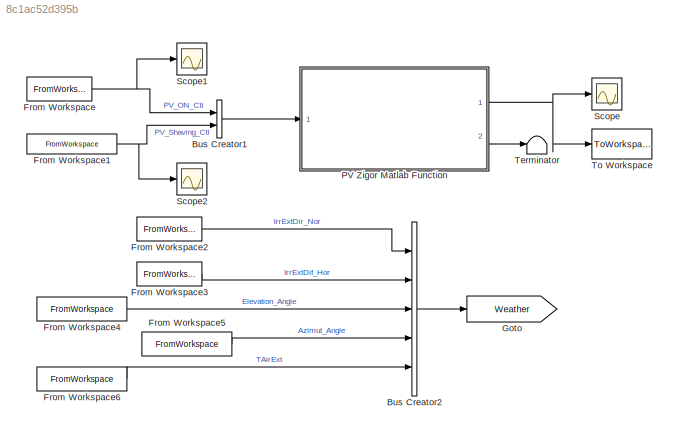
MODEL slx_8c1ac52d395b
KIND model
BLOCK [BusCreator] Bus Creator1
  DisplayOption = bar
  Inputs = 2
  Ports = [2, 1]
BLOCK [BusCreator] Bus Creator2
  DisplayOption = bar
  Inputs = 5
  Ports = [5, 1]
BLOCK [FromWorkspace] From Workspace
  SampleTime = 0
  VariableName = PV_ON_Ctl
  ZeroCross = on
BLOCK [FromWorkspace] From Workspace1
  SampleTime = 0
  VariableName = PV_Shaving_Ctl
  ZeroCross = on
BLOCK [FromWorkspace] From Workspace2
  SampleTime = 0
  VariableName = IrrExtDir_Nor
  ZeroCross = on
BLOCK [FromWorkspace] From Workspace3
  SampleTime = 0
  VariableName = IrrExtDir_Hor
  ZeroCross = on
BLOCK [FromWorkspace] From Workspace4
  SampleTime = 0
  VariableName = Elevation_Angle
  ZeroCross = on
BLOCK [FromWorkspace] From Workspace5
  SampleTime = 0
  VariableName = Azimut_Angle
  ZeroCross = on
BLOCK [FromWorkspace] From Workspace6
  SampleTime = 0
  VariableName = TAirExt
  ZeroCross = on
BLOCK [Goto] Goto
  GotoTag = Weather
  TagVisibility = global
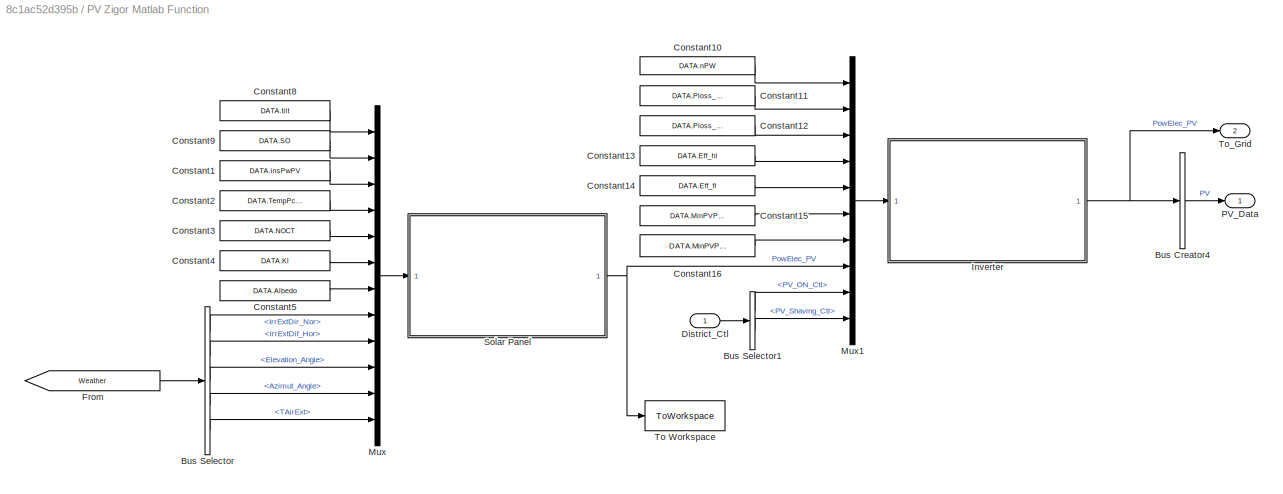
BLOCK [SubSystem] PV Zigor Matlab Function
  FunctionWithSeparateData = off
  MaskHideContents = off
  MinAlgLoopOccurrences = off
  Opaque = off
  Ports = [1, 2]
  PropExecContextOutsideSubsystem = off
  RTWSystemCode = Auto
  RequestExecContextInheritance = off
BLOCK [BusCreator] PV Zigor Matlab Function/Bus Creator4
  DisplayOption = bar
  Inputs = 1
  Ports = [1, 1]
BLOCK [BusSelector] PV Zigor Matlab Function/Bus Selector
  OutputSignals = IrrExtDir_Nor,IrrExtDif_Hor,Elevation_Angle,Azimut_Angle,TAirExt
  Ports = [1, 5]
BLOCK [BusSelector] PV Zigor Matlab Function/Bus Selector1
  OutputSignals = PV_ON_Ctl,PV_Shaving_Ctl
  Ports = [1, 2]
BLOCK [Constant] PV Zigor Matlab Function/Constant1
  Value = DATA.insPwPV
BLOCK [Constant] PV Zigor Matlab Function/Constant10
  Value = DATA.nPW
BLOCK [Constant] PV Zigor Matlab Function/Constant11
  Value = DATA.Ploss_off
BLOCK [Constant] PV Zigor Matlab Function/Constant12
  Value = DATA.Ploss_on
BLOCK [Constant] PV Zigor Matlab Function/Constant13
  Value = DATA.Eff_hl
BLOCK [Constant] PV Zigor Matlab Function/Constant14
  Value = DATA.Eff_fl
BLOCK [Constant] PV Zigor Matlab Function/Constant15
  Value = DATA.MinPVPW_On
BLOCK [Constant] PV Zigor Matlab Function/Constant16
  Value = DATA.MinPVPW_av
BLOCK [Constant] PV Zigor Matlab Function/Constant2
  Value = DATA.TempPcoeffPV
BLOCK [Constant] PV Zigor Matlab Function/Constant3
  Value = DATA.NOCT
BLOCK [Constant] PV Zigor Matlab Function/Constant4
  Value = DATA.Kl
BLOCK [Constant] PV Zigor Matlab Function/Constant5
  Value = DATA.Albedo
BLOCK [Constant] PV Zigor Matlab Function/Constant8
  Value = DATA.tilt
BLOCK [Constant] PV Zigor Matlab Function/Constant9
  Value = DATA.SO
BLOCK [Inport] PV Zigor Matlab Function/District_Ctl
  IconDisplay = Port number
BLOCK [From] PV Zigor Matlab Function/From
  GotoTag = Weather
  TagVisibility = global
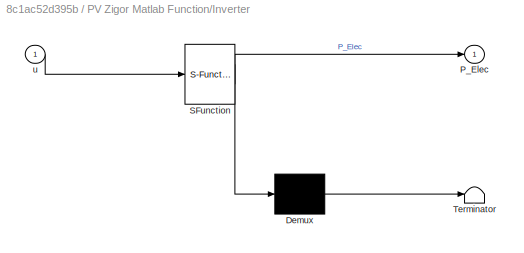
BLOCK [SubSystem] PV Zigor Matlab Function/Inverter
  ErrorFcn = Stateflow.Translate.translate
  FunctionWithSeparateData = off
  MaskHideContents = off
  MinAlgLoopOccurrences = off
  Opaque = off
  PermitHierarchicalResolution = ExplicitOnly
  Ports = [1, 1]
  PropExecContextOutsideSubsystem = off
  RTWSystemCode = Auto
  RequestExecContextInheritance = off
  SFBlockType = MATLAB Function
BLOCK [Demux] PV Zigor Matlab Function/Inverter/ Demux 
  Outputs = 1
  Ports = [1, 1]
BLOCK [S-Function] PV Zigor Matlab Function/Inverter/ SFunction 
  EnableBusSupport = on
  FunctionName = sf_sfun
  PortCounts = [1 2]
  Ports = [1, 2]
  Tag = Stateflow S-Function Zigor_Model 4
BLOCK [Terminator] PV Zigor Matlab Function/Inverter/ Terminator 
BLOCK [Outport] PV Zigor Matlab Function/Inverter/P_Elec
  IconDisplay = Port number
BLOCK [Inport] PV Zigor Matlab Function/Inverter/u
  IconDisplay = Port number
BLOCK [Mux] PV Zigor Matlab Function/Mux
  DisplayOption = bar
  Inputs = 12
  Ports = [12, 1]
BLOCK [Mux] PV Zigor Matlab Function/Mux1
  DisplayOption = bar
  Inputs = 10
  Ports = [10, 1]
BLOCK [Outport] PV Zigor Matlab Function/PV_Data
  IconDisplay = Port number
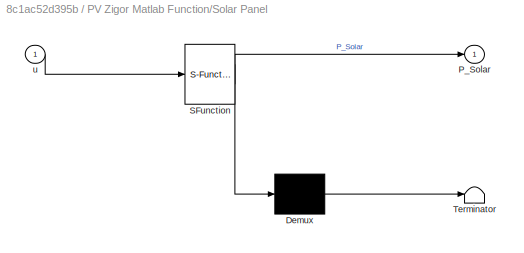
BLOCK [SubSystem] PV Zigor Matlab Function/Solar Panel
  ErrorFcn = Stateflow.Translate.translate
  FunctionWithSeparateData = off
  MaskHideContents = off
  MinAlgLoopOccurrences = off
  Opaque = off
  PermitHierarchicalResolution = ExplicitOnly
  Ports = [1, 1]
  PropExecContextOutsideSubsystem = off
  RTWSystemCode = Auto
  RequestExecContextInheritance = off
  SFBlockType = MATLAB Function
BLOCK [Demux] PV Zigor Matlab Function/Solar Panel/ Demux 
  Outputs = 1
  Ports = [1, 1]
BLOCK [S-Function] PV Zigor Matlab Function/Solar Panel/ SFunction 
  EnableBusSupport = on
  FunctionName = sf_sfun
  PortCounts = [1 2]
  Ports = [1, 2]
  Tag = Stateflow S-Function Zigor_Model 5
BLOCK [Terminator] PV Zigor Matlab Function/Solar Panel/ Terminator 
BLOCK [Outport] PV Zigor Matlab Function/Solar Panel/P_Solar
  IconDisplay = Port number
BLOCK [Inport] PV Zigor Matlab Function/Solar Panel/u
  IconDisplay = Port number
BLOCK [ToWorkspace] PV Zigor Matlab Function/To Workspace
  MaxDataPoints = inf
  Ports = [1]
  SampleTime = -1
  SaveFormat = Structure With Time
  VariableName = PanelPower
BLOCK [Outport] PV Zigor Matlab Function/To_Grid
  IconDisplay = Port number
  Port = 2
BLOCK [Scope] Scope
  DataFormat = StructureWithTime
  Floating = off
  NumInputPorts = 1
  Ports = [1]
  SampleTime = 0
  ShowLegends = off
BLOCK [Scope] Scope1
  DataFormat = StructureWithTime
  Floating = off
  NumInputPorts = 1
  Ports = [1]
  SampleTime = 0
  SaveName = ScopeData1
  ShowLegends = off
BLOCK [Scope] Scope2
  DataFormat = StructureWithTime
  Floating = off
  NumInputPorts = 1
  Ports = [1]
  SampleTime = 0
  SaveName = ScopeData2
  ShowLegends = off
BLOCK [Terminator] Terminator
BLOCK [ToWorkspace] To Workspace
  MaxDataPoints = inf
  Ports = [1]
  SampleTime = -1
  SaveFormat = Structure With Time
  VariableName = PV_Data
LINE Bus Creator1:1 -> PV Zigor Matlab Function:1
LINE Bus Creator2:1 -> Goto:1
NET From Workspace1:1 -> Bus Creator1:2, Scope2:1
LINE From Workspace2:1 -> Bus Creator2:1
LINE From Workspace3:1 -> Bus Creator2:2
LINE From Workspace4:1 -> Bus Creator2:3
LINE From Workspace5:1 -> Bus Creator2:4
LINE From Workspace6:1 -> Bus Creator2:5
NET From Workspace:1 -> Bus Creator1:1, Scope1:1
LINE PV Zigor Matlab Function/Bus Creator4:1 -> PV Zigor Matlab Function/PV_Data:1
LINE PV Zigor Matlab Function/Bus Selector1:1 -> PV Zigor Matlab Function/Mux1:9
LINE PV Zigor Matlab Function/Bus Selector1:2 -> PV Zigor Matlab Function/Mux1:10
LINE PV Zigor Matlab Function/Bus Selector:1 -> PV Zigor Matlab Function/Mux:8
LINE PV Zigor Matlab Function/Bus Selector:2 -> PV Zigor Matlab Function/Mux:9
LINE PV Zigor Matlab Function/Bus Selector:3 -> PV Zigor Matlab Function/Mux:10
LINE PV Zigor Matlab Function/Bus Selector:4 -> PV Zigor Matlab Function/Mux:11
LINE PV Zigor Matlab Function/Bus Selector:5 -> PV Zigor Matlab Function/Mux:12
LINE PV Zigor Matlab Function/Constant10:1 -> PV Zigor Matlab Function/Mux1:1
LINE PV Zigor Matlab Function/Constant11:1 -> PV Zigor Matlab Function/Mux1:2
LINE PV Zigor Matlab Function/Constant12:1 -> PV Zigor Matlab Function/Mux1:3
LINE PV Zigor Matlab Function/Constant13:1 -> PV Zigor Matlab Function/Mux1:4
LINE PV Zigor Matlab Function/Constant14:1 -> PV Zigor Matlab Function/Mux1:5
LINE PV Zigor Matlab Function/Constant15:1 -> PV Zigor Matlab Function/Mux1:6
LINE PV Zigor Matlab Function/Constant16:1 -> PV Zigor Matlab Function/Mux1:7
LINE PV Zigor Matlab Function/Constant1:1 -> PV Zigor Matlab Function/Mux:3
LINE PV Zigor Matlab Function/Constant2:1 -> PV Zigor Matlab Function/Mux:4
LINE PV Zigor Matlab Function/Constant3:1 -> PV Zigor Matlab Function/Mux:5
LINE PV Zigor Matlab Function/Constant4:1 -> PV Zigor Matlab Function/Mux:6
LINE PV Zigor Matlab Function/Constant5:1 -> PV Zigor Matlab Function/Mux:7
LINE PV Zigor Matlab Function/Constant8:1 -> PV Zigor Matlab Function/Mux:1
LINE PV Zigor Matlab Function/Constant9:1 -> PV Zigor Matlab Function/Mux:2
LINE PV Zigor Matlab Function/District_Ctl:1 -> PV Zigor Matlab Function/Bus Selector1:1
LINE PV Zigor Matlab Function/From:1 -> PV Zigor Matlab Function/Bus Selector:1
NET PV Zigor Matlab Function/Inverter:1 -> PV Zigor Matlab Function/Bus Creator4:1, PV Zigor Matlab Function/To_Grid:1
LINE PV Zigor Matlab Function/Mux1:1 -> PV Zigor Matlab Function/Inverter:1
LINE PV Zigor Matlab Function/Mux:1 -> PV Zigor Matlab Function/Solar Panel:1
NET PV Zigor Matlab Function/Solar Panel:1 -> PV Zigor Matlab Function/Mux1:8, PV Zigor Matlab Function/To Workspace:1
NET PV Zigor Matlab Function:1 -> Scope:1, To Workspace:1
LINE PV Zigor Matlab Function:2 -> Terminator:1
note: NET lines group one-source signal fan-out (src -> all destinations, sorted); 1:1 wires keep LINE
